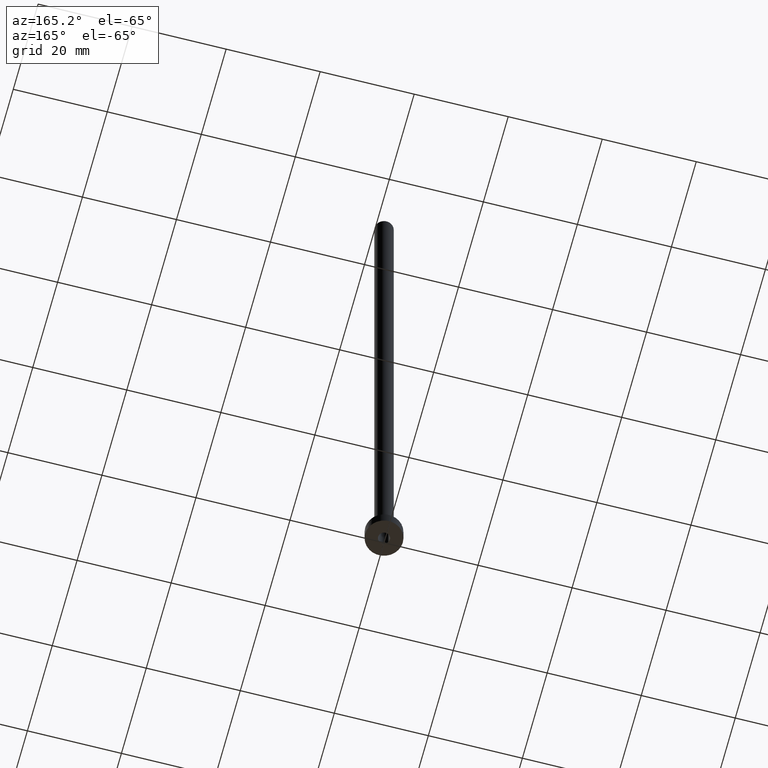
[diagram: clean part render]
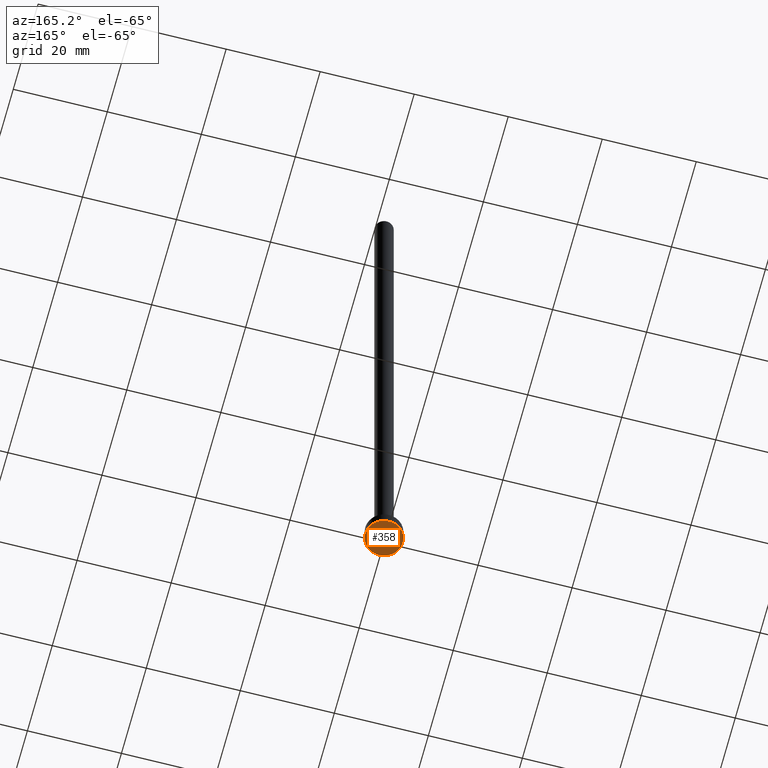
[diagram: same view with one face highlighted and labeled with its STEP entity id]
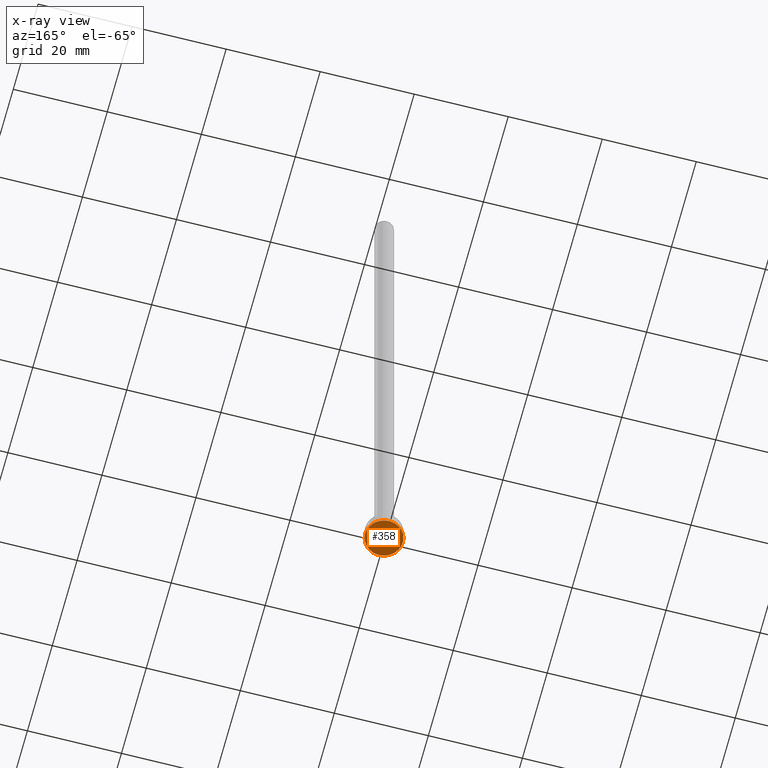
[diagram: x-ray of the same camera — body ghosted, the highlighted face saturated]
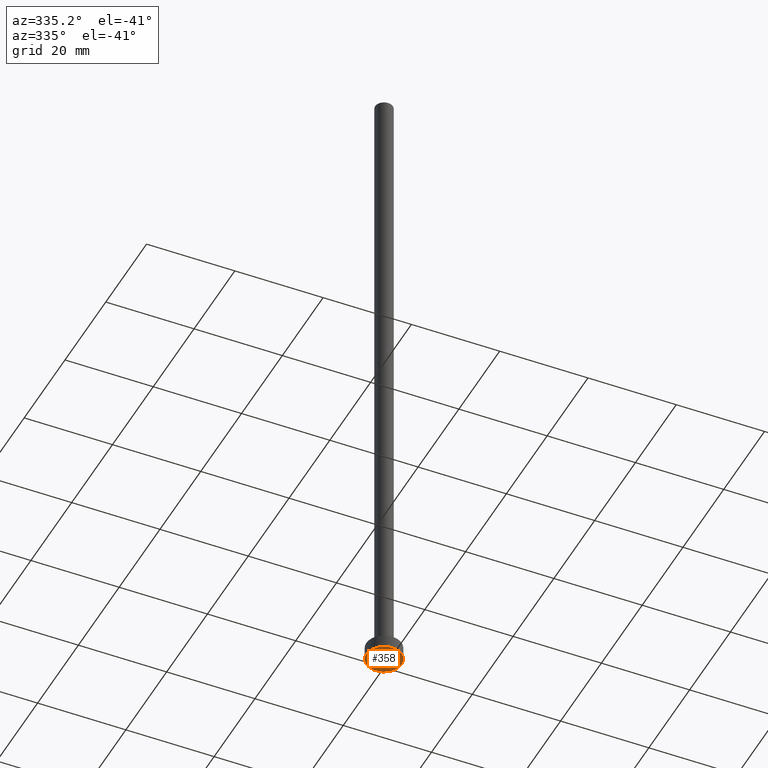
[diagram: same view with one face highlighted and labeled with its STEP entity id]
A machine part, auxiliary view. The second image highlights one B-rep face of the part: STEP entity #358.
The next image is the same camera in x-ray: the body ghosted, the highlighted face saturated — about 0% of this face is hidden behind the body in this view.
A second angle (auxiliary view) of the same face is appended — the face is thin or edge-on in the first view.
In plain terms, the highlighted planar face has unit normal (0, 0, 1).
Its self-contained STEP definition (entity closure, byte-faithful):
#10 = CARTESIAN_POINT ( 'NONE',  ( 0.000000000000000000, 0.000000000000000000, 0.000000000000000000 ) ) ;
#13 = DIRECTION ( 'NONE',  ( 1.000000000000000000, 0.000000000000000000, 0.000000000000000000 ) ) ;
#15 = DIRECTION ( 'NONE',  ( 0.000000000000000000, 0.000000000000000000, 1.000000000000000000 ) ) ;
#20 = ORIENTED_EDGE ( 'NONE', *, *, #252, .F. ) ;
#25 = ORIENTED_EDGE ( 'NONE', *, *, #99, .F. ) ;
#39 = DIRECTION ( 'NONE',  ( 1.000000000000000000, 0.000000000000000000, -0.000000000000000000 ) ) ;
#42 = AXIS2_PLACEMENT_3D ( 'NONE', #69, #98, #460 ) ;
#50 = EDGE_LOOP ( 'NONE', ( #25, #411 ) ) ;
#69 = CARTESIAN_POINT ( 'NONE',  ( 0.000000000000000000, 0.000000000000000000, 0.000000000000000000 ) ) ;
#72 = PLANE ( 'NONE',  #374 ) ;
#77 = CIRCLE ( 'NONE', #291, 1.250000000000000000 ) ;
#93 = EDGE_CURVE ( 'NONE', #312, #317, #122, .T. ) ;
#96 = ORIENTED_EDGE ( 'NONE', *, *, #165, .F. ) ;
#98 = DIRECTION ( 'NONE',  ( -0.000000000000000000, -0.000000000000000000, -1.000000000000000000 ) ) ;
#99 = EDGE_CURVE ( 'NONE', #317, #312, #382, .T. ) ;
#122 = CIRCLE ( 'NONE', #412, 4.000000000000000000 ) ;
#151 = DIRECTION ( 'NONE',  ( -0.000000000000000000, -0.000000000000000000, -1.000000000000000000 ) ) ;
#154 = DIRECTION ( 'NONE',  ( 1.000000000000000000, 0.000000000000000000, 0.000000000000000000 ) ) ;
#155 = CARTESIAN_POINT ( 'NONE',  ( 1.250000000000000000, 1.530808498934191571E-16, 0.000000000000000000 ) ) ;
#164 = EDGE_LOOP ( 'NONE', ( #20, #96 ) ) ;
#165 = EDGE_CURVE ( 'NONE', #451, #277, #77, .T. ) ;
#199 = CARTESIAN_POINT ( 'NONE',  ( 0.000000000000000000, 0.000000000000000000, 0.000000000000000000 ) ) ;
#212 = CARTESIAN_POINT ( 'NONE',  ( -4.000000000000000000, 0.000000000000000000, 0.000000000000000000 ) ) ;
#241 = FACE_BOUND ( 'NONE', #164, .T. ) ;
#252 = EDGE_CURVE ( 'NONE', #277, #451, #262, .T. ) ;
#262 = CIRCLE ( 'NONE', #42, 1.250000000000000000 ) ;
#276 = CARTESIAN_POINT ( 'NONE',  ( 0.000000000000000000, 0.000000000000000000, 0.000000000000000000 ) ) ;
#277 = VERTEX_POINT ( 'NONE', #343 ) ;
#291 = AXIS2_PLACEMENT_3D ( 'NONE', #10, #151, #13 ) ;
#297 = CARTESIAN_POINT ( 'NONE',  ( 0.000000000000000000, 0.000000000000000000, 0.000000000000000000 ) ) ;
#311 = CARTESIAN_POINT ( 'NONE',  ( 4.000000000000000000, 4.898587196589412829E-16, 0.000000000000000000 ) ) ;
#312 = VERTEX_POINT ( 'NONE', #311 ) ;
#317 = VERTEX_POINT ( 'NONE', #212 ) ;
#328 = DIRECTION ( 'NONE',  ( 1.000000000000000000, 0.000000000000000000, 0.000000000000000000 ) ) ;
#343 = CARTESIAN_POINT ( 'NONE',  ( -1.250000000000000000, 0.000000000000000000, 0.000000000000000000 ) ) ;
#355 = AXIS2_PLACEMENT_3D ( 'NONE', #297, #403, #328 ) ;
#358 = ADVANCED_FACE ( 'NONE', ( #241, #389 ), #72, .F. ) ;
#374 = AXIS2_PLACEMENT_3D ( 'NONE', #276, #417, #39 ) ;
#382 = CIRCLE ( 'NONE', #355, 4.000000000000000000 ) ;
#389 = FACE_OUTER_BOUND ( 'NONE', #50, .T. ) ;
#403 = DIRECTION ( 'NONE',  ( 0.000000000000000000, 0.000000000000000000, 1.000000000000000000 ) ) ;
#411 = ORIENTED_EDGE ( 'NONE', *, *, #93, .F. ) ;
#412 = AXIS2_PLACEMENT_3D ( 'NONE', #199, #15, #154 ) ;
#417 = DIRECTION ( 'NONE',  ( 0.000000000000000000, 0.000000000000000000, 1.000000000000000000 ) ) ;
#451 = VERTEX_POINT ( 'NONE', #155 ) ;
#460 = DIRECTION ( 'NONE',  ( 1.000000000000000000, 0.000000000000000000, 0.000000000000000000 ) ) ;